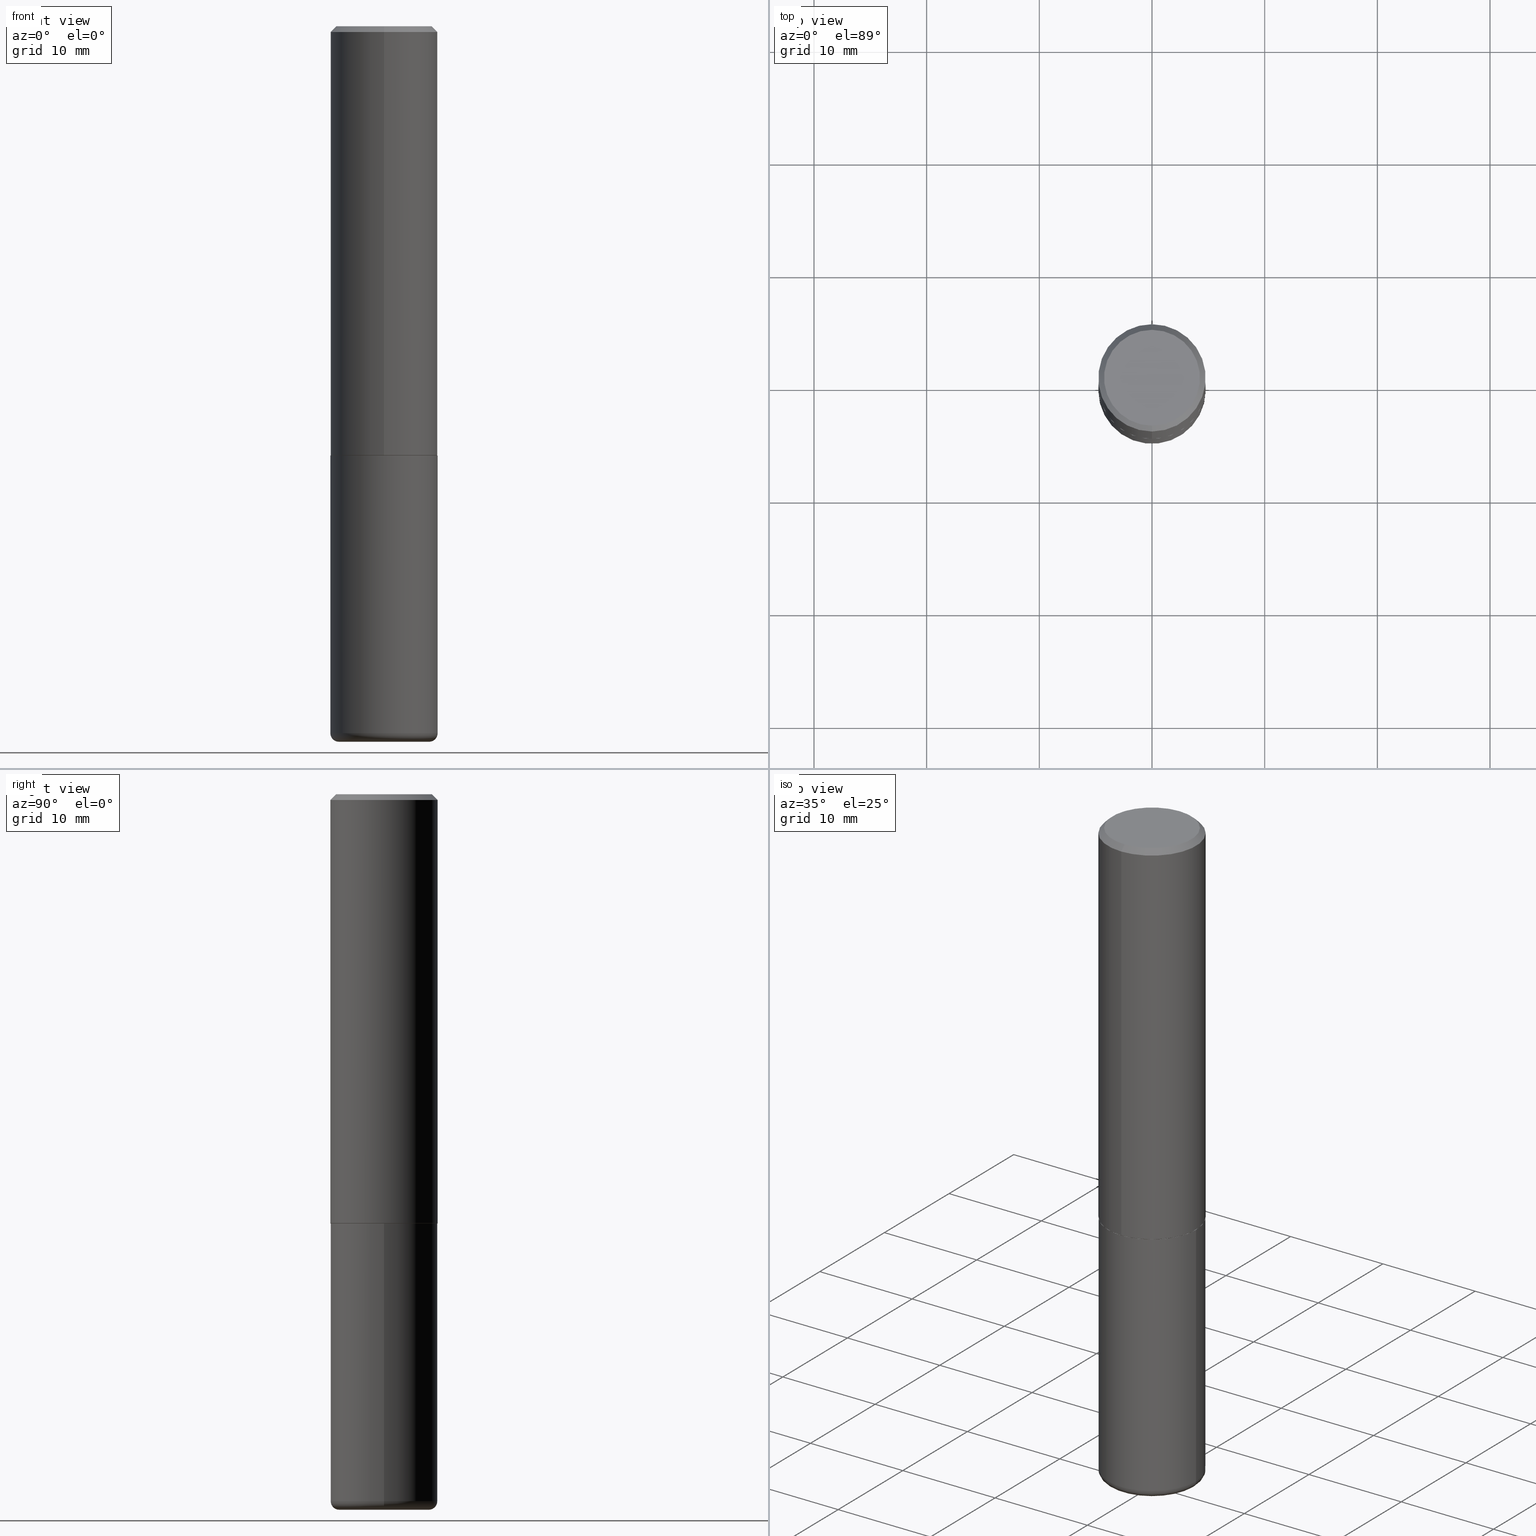
[diagram: canonical four-view strip — front | top / right | iso, engineering-drawing reading convention]
A machine part, canonical four-view strip (front | top / right | iso — engineering-drawing reading convention). The complete STEP part file that produces these views, byte-faithful:
ISO-10303-21;
HEADER;
FILE_DESCRIPTION (( 'STEP AP203' ),
    '1' );
FILE_NAME ('38372.STEP',
    '2024-03-03T01:27:41',
    ( '' ),
    ( '' ),
    'SwSTEP 2.0',
    'SolidWorks 2023',
    '' );
FILE_SCHEMA (( 'CONFIG_CONTROL_DESIGN' ));
ENDSEC;

DATA;
#1 = PERSON_AND_ORGANIZATION ( #109, #358 ) ;
#2 = AXIS2_PLACEMENT_3D ( 'NONE', #100, #399, #105 ) ;
#3 = CC_DESIGN_APPROVAL ( #12, ( #290 ) ) ;
#4 = EDGE_CURVE ( 'NONE', #311, #215, #394, .T. ) ;
#5 = CIRCLE ( 'NONE', #292, 0.03000000000000025910 ) ;
#6 = EDGE_LOOP ( 'NONE', ( #152, #233, #370, #104 ) ) ;
#7 = CARTESIAN_POINT ( 'NONE',  ( 1.309305502066175205E-15, 0.1874999999999999167, -0.02000000000000069431 ) ) ;
#8 = EDGE_CURVE ( 'NONE', #215, #390, #299, .T. ) ;
#9 = EDGE_LOOP ( 'NONE', ( #70, #273 ) ) ;
#10 = FACE_OUTER_BOUND ( 'NONE', #306, .T. ) ;
#11 = ORIENTED_EDGE ( 'NONE', *, *, #294, .F. ) ;
#12 = APPROVAL ( #324, 'UNSPECIFIED' ) ;
#13 = CARTESIAN_POINT ( 'NONE',  ( -1.217738394604445850E-15, -0.1674999999999998435, 7.084849479045783825E-16 ) ) ;
#14 = ORIENTED_EDGE ( 'NONE', *, *, #56, .T. ) ;
#15 = AXIS2_PLACEMENT_3D ( 'NONE', #339, #375, #410 ) ;
#16 = AXIS2_PLACEMENT_3D ( 'NONE', #54, #307, #22 ) ;
#17 = DIRECTION ( 'NONE',  ( -2.445468806185136597E-29, 3.491481338843145583E-15, 1.000000000000000000 ) ) ;
#18 = CARTESIAN_POINT ( 'NONE',  ( 1.309305502066175205E-15, 0.1874999999999999167, -0.02000000000000069431 ) ) ;
#19 = CC_DESIGN_PERSON_AND_ORGANIZATION_ASSIGNMENT ( #25, #154, ( #164 ) ) ;
#20 = PERSON_AND_ORGANIZATION ( #109, #358 ) ;
#21 = EDGE_LOOP ( 'NONE', ( #77, #219, #271, #392 ) ) ;
#22 = DIRECTION ( 'NONE',  ( 1.000000000000000000, -6.982962677686267499E-15, 4.883557194083113462E-29 ) ) ;
#23 = CIRCLE ( 'NONE', #127, 0.1875000000000001943 ) ;
#24 = DIRECTION ( 'NONE',  ( -1.000000000000000000, 6.982962677686265922E-15, -4.876176775795935793E-29 ) ) ;
#25 = PERSON_AND_ORGANIZATION ( #109, #358 ) ;
#26 = ORIENTED_EDGE ( 'NONE', *, *, #165, .F. ) ;
#27 = DIRECTION ( 'NONE',  ( -2.445468806185136597E-29, 3.491481338843145583E-15, 1.000000000000000000 ) ) ;
#28 = APPROVAL_DATE_TIME ( #120, #46 ) ;
#29 = ADVANCED_FACE ( 'NONE', ( #163 ), #305, .F. ) ;
#30 = FACE_OUTER_BOUND ( 'NONE', #6, .T. ) ;
#31 = DIRECTION ( 'NONE',  ( -4.937700262164211199E-15, -0.7071067811864968355, 0.7071067811865981989 ) ) ;
#32 = VECTOR ( 'NONE', #249, 39.37007874015748143 ) ;
#33 = COORDINATED_UNIVERSAL_TIME_OFFSET ( 5, 0, .BEHIND. ) ;
#34 = CC_DESIGN_APPROVAL ( #46, ( #335 ) ) ;
#35 = SECURITY_CLASSIFICATION_LEVEL ( 'unclassified' ) ;
#36 = UNCERTAINTY_MEASURE_WITH_UNIT (LENGTH_MEASURE( 1.000000000000000082E-05 ), #43, 'distance_accuracy_value', 'NONE');
#37 = DATE_AND_TIME ( #40, #415 ) ;
#38 = AXIS2_PLACEMENT_3D ( 'NONE', #102, #150, #196 ) ;
#39 = CIRCLE ( 'NONE', #388, 0.1864999999999999714 ) ;
#40 = CALENDAR_DATE ( 2024, 2, 3 ) ;
#41 = EDGE_CURVE ( 'NONE', #53, #332, #87, .T. ) ;
#42 = PLANE ( 'NONE',  #229 ) ;
#43 =( CONVERSION_BASED_UNIT ( 'INCH', #328 ) LENGTH_UNIT ( ) NAMED_UNIT ( #158 ) );
#44 = AXIS2_PLACEMENT_3D ( 'NONE', #108, #17, #232 ) ;
#45 = CARTESIAN_POINT ( 'NONE',  ( 3.666148437875925943E-29, -5.233171026005651328E-15, -1.499000000000000110 ) ) ;
#46 = APPROVAL ( #349, 'UNSPECIFIED' ) ;
#47 = ORIENTED_EDGE ( 'NONE', *, *, #144, .T. ) ;
#48 = PRODUCT_DEFINITION_SHAPE ( 'NONE', 'NONE',  #335 ) ;
#49 = CARTESIAN_POINT ( 'NONE',  ( 3.668594167320807619E-29, -5.236662134095047748E-15, -1.500000000000000444 ) ) ;
#50 = ORIENTED_EDGE ( 'NONE', *, *, #294, .T. ) ;
#51 = DIRECTION ( 'NONE',  ( -2.445729444880537759E-29, 3.491108089396698105E-15, 1.000000000000000000 ) ) ;
#52 = DIRECTION ( 'NONE',  ( -2.445468806185136877E-29, 3.491481338843145188E-15, 1.000000000000000000 ) ) ;
#53 = VERTEX_POINT ( 'NONE', #403 ) ;
#54 = CARTESIAN_POINT ( 'NONE',  ( 6.040307951277287977E-29, -8.623958906942569995E-15, -2.470000000000000195 ) ) ;
#55 = CARTESIAN_POINT ( 'NONE',  ( 6.040307951277287977E-29, -8.623958906942569995E-15, -2.470000000000000195 ) ) ;
#56 = EDGE_CURVE ( 'NONE', #332, #402, #94, .T. ) ;
#57 = DESIGN_CONTEXT ( 'detailed design', #66, 'design' ) ;
#58 = APPLICATION_CONTEXT ( 'configuration controlled 3d designs of mechanical parts and assemblies' ) ;
#59 = ORIENTED_EDGE ( 'NONE', *, *, #338, .F. ) ;
#60 = CARTESIAN_POINT ( 'NONE',  ( 1.239475875289311907E-15, 0.1674999999999998435, -4.610362620433143958E-16 ) ) ;
#61 = PERSON_AND_ORGANIZATION ( #109, #358 ) ;
#62 = APPROVAL ( #226, 'UNSPECIFIED' ) ;
#63 = CYLINDRICAL_SURFACE ( 'NONE', #371, 0.1875000000000000833 ) ;
#64 = DIRECTION ( 'NONE',  ( -6.982962677686265922E-15, -1.000000000000000000, 3.491108089396698105E-15 ) ) ;
#65 = AXIS2_PLACEMENT_3D ( 'NONE', #174, #393, #170 ) ;
#66 = APPLICATION_CONTEXT ( 'configuration controlled 3d designs of mechanical parts and assemblies' ) ;
#67 = APPROVAL_DATE_TIME ( #37, #12 ) ;
#68 = EDGE_CURVE ( 'NONE', #402, #372, #236, .T. ) ;
#69 = DIRECTION ( 'NONE',  ( 6.982962677686265922E-15, 1.000000000000000000, -3.491108089396698105E-15 ) ) ;
#70 = ORIENTED_EDGE ( 'NONE', *, *, #4, .T. ) ;
#71 = CARTESIAN_POINT ( 'NONE',  ( 4.891458889761085187E-31, -6.982216178793409866E-17, -0.02000000000000004205 ) ) ;
#72 = EDGE_CURVE ( 'NONE', #416, #82, #95, .T. ) ;
#73 =( NAMED_UNIT ( * ) PLANE_ANGLE_UNIT ( ) SI_UNIT ( $, .RADIAN. ) );
#74 = DIRECTION ( 'NONE',  ( 2.445729444880537198E-29, -3.491108089396698105E-15, -1.000000000000000000 ) ) ;
#75 = ORIENTED_EDGE ( 'NONE', *, *, #165, .T. ) ;
#76 = DIRECTION ( 'NONE',  ( -6.982962677686265922E-15, -1.000000000000000000, 2.913971193241877611E-15 ) ) ;
#77 = ORIENTED_EDGE ( 'NONE', *, *, #359, .F. ) ;
#78 = DIRECTION ( 'NONE',  ( -2.445468806185136597E-29, 3.491481338843145583E-15, 1.000000000000000000 ) ) ;
#79 = ORIENTED_EDGE ( 'NONE', *, *, #8, .F. ) ;
#80 = AXIS2_PLACEMENT_3D ( 'NONE', #55, #123, #246 ) ;
#81 = LINE ( 'NONE', #181, #122 ) ;
#82 = VERTEX_POINT ( 'NONE', #331 ) ;
#83 = DIRECTION ( 'NONE',  ( -2.445729444880537759E-29, 3.491108089396698105E-15, 1.000000000000000000 ) ) ;
#84 = ADVANCED_FACE ( 'NONE', ( #260 ), #159, .T. ) ;
#85 = ORIENTED_EDGE ( 'NONE', *, *, #72, .T. ) ;
#86 = CARTESIAN_POINT ( 'NONE',  ( 6.113672015462842613E-29, -8.728703347107866520E-15, -2.500000000000000444 ) ) ;
#87 = CIRCLE ( 'NONE', #378, 0.1875000000000000555 ) ;
#88 = CIRCLE ( 'NONE', #136, 0.03000000000000025910 ) ;
#89 = CARTESIAN_POINT ( 'NONE',  ( 3.668594167320807619E-29, -5.236662134095047748E-15, -1.500000000000000444 ) ) ;
#90 = VERTEX_POINT ( 'NONE', #360 ) ;
#91 = DIRECTION ( 'NONE',  ( 1.000000000000000000, -6.982962677686273021E-15, 0.000000000000000000 ) ) ;
#92 = ADVANCED_FACE ( 'NONE', ( #327 ), #42, .F. ) ;
#93 = DATE_AND_TIME ( #346, #344 ) ;
#94 = LINE ( 'NONE', #264, #227 ) ;
#95 = CIRCLE ( 'NONE', #65, 0.1875000000000001943 ) ;
#96 = PERSON_AND_ORGANIZATION ( #109, #358 ) ;
#97 = DIRECTION ( 'NONE',  ( -2.445468806185136597E-29, 3.491481338843145583E-15, 1.000000000000000000 ) ) ;
#98 = EDGE_CURVE ( 'NONE', #82, #171, #336, .T. ) ;
#99 = AXIS2_PLACEMENT_3D ( 'NONE', #401, #348, #153 ) ;
#100 = CARTESIAN_POINT ( 'NONE',  ( 6.040307951277287977E-29, -8.623958906942569995E-15, -2.470000000000000195 ) ) ;
#101 = ADVANCED_FACE ( 'NONE', ( #263 ), #397, .T. ) ;
#102 = CARTESIAN_POINT ( 'NONE',  ( 3.668203209277704895E-29, -5.237222008264718177E-15, -1.500000000000000222 ) ) ;
#103 = DIRECTION ( 'NONE',  ( 1.000000000000000000, -6.982962677686266711E-15, 0.000000000000000000 ) ) ;
#104 = ORIENTED_EDGE ( 'NONE', *, *, #400, .F. ) ;
#105 = DIRECTION ( 'NONE',  ( 1.000000000000000000, -6.982962677686267499E-15, 4.883557194083113462E-29 ) ) ;
#106 = LOCAL_TIME ( 20, 27, 41.00000000000000000, #161 ) ;
#107 = ORIENTED_EDGE ( 'NONE', *, *, #354, .F. ) ;
#108 = CARTESIAN_POINT ( 'NONE',  ( 0.000000000000000000, 0.000000000000000000, 0.000000000000000000 ) ) ;
#109 = PERSON ( 'UNSPECIFIED', 'UNSPECIFIED', 'UNSPECIFIED', ('UNSPECIFIED'), ('UNSPECIFIED'), ('UNSPECIFIED') ) ;
#110 = FACE_OUTER_BOUND ( 'NONE', #184, .T. ) ;
#111 = ADVANCED_FACE ( 'NONE', ( #138 ), #310, .T. ) ;
#112 = DIRECTION ( 'NONE',  ( -6.982962677686266711E-15, -1.000000000000000000, 3.491108089396698105E-15 ) ) ;
#113 = CONICAL_SURFACE ( 'NONE', #265, 0.1864999999999999714, 0.7853981633973801113 ) ;
#114 = CC_DESIGN_APPROVAL ( #62, ( #193 ) ) ;
#115 = LINE ( 'NONE', #242, #32 ) ;
#116 = VERTEX_POINT ( 'NONE', #195 ) ;
#117 = CARTESIAN_POINT ( 'NONE',  ( 3.668594167320807619E-29, -5.236662134095047748E-15, -1.500000000000000444 ) ) ;
#118 = EDGE_LOOP ( 'NONE', ( #340, #180, #121, #107 ) ) ;
#119 = FACE_OUTER_BOUND ( 'NONE', #166, .T. ) ;
#120 = DATE_AND_TIME ( #182, #199 ) ;
#121 = ORIENTED_EDGE ( 'NONE', *, *, #253, .T. ) ;
#122 = VECTOR ( 'NONE', #312, 39.37007874015748143 ) ;
#123 = DIRECTION ( 'NONE',  ( -2.445468806185136597E-29, 3.491481338843145583E-15, 1.000000000000000000 ) ) ;
#124 = DIRECTION ( 'NONE',  ( -6.982962677686266711E-15, -1.000000000000000000, 3.491108089396698499E-15 ) ) ;
#125 =( LENGTH_UNIT ( ) NAMED_UNIT ( * ) SI_UNIT ( $, .METRE. ) );
#126 = PERSON_AND_ORGANIZATION_ROLE ( 'creator' ) ;
#127 = AXIS2_PLACEMENT_3D ( 'NONE', #45, #237, #76 ) ;
#128 = CLOSED_SHELL ( 'NONE', ( #230, #222, #84, #111, #350, #210, #282, #92 ) ) ;
#129 = DATE_AND_TIME ( #387, #106 ) ;
#130 = AXIS2_PLACEMENT_3D ( 'NONE', #231, #267, #258 ) ;
#131 = CIRCLE ( 'NONE', #320, 0.1674999999999998435 ) ;
#132 = DIRECTION ( 'NONE',  ( -2.445729444880537759E-29, 3.491108089396698105E-15, 1.000000000000000000 ) ) ;
#133 = DIRECTION ( 'NONE',  ( 4.937700262164543309E-15, 0.7071067811865444641, -0.7071067811865506814 ) ) ;
#134 = ADVANCED_BREP_SHAPE_REPRESENTATION ( '38372', ( #205, #209, #285 ), #322 ) ;
#135 = CYLINDRICAL_SURFACE ( 'NONE', #130, 0.1875000000000000833 ) ;
#136 = AXIS2_PLACEMENT_3D ( 'NONE', #220, #142, #91 ) ;
#137 = APPROVAL_PERSON_ORGANIZATION ( #61, #46, #141 ) ;
#138 = FACE_OUTER_BOUND ( 'NONE', #268, .T. ) ;
#139 = EDGE_CURVE ( 'NONE', #311, #171, #368, .T. ) ;
#140 = DIRECTION ( 'NONE',  ( -1.000000000000000000, 7.105427357600994759E-15, 0.000000000000000000 ) ) ;
#141 = APPROVAL_ROLE ( '' ) ;
#142 = DIRECTION ( 'NONE',  ( -6.982962677686266711E-15, -1.000000000000000000, 3.491481338843145583E-15 ) ) ;
#143 = CIRCLE ( 'NONE', #218, 0.1875000000000000278 ) ;
#144 = EDGE_CURVE ( 'NONE', #82, #416, #23, .T. ) ;
#145 = ORIENTED_EDGE ( 'NONE', *, *, #178, .F. ) ;
#146 = CC_DESIGN_SECURITY_CLASSIFICATION ( #193, ( #290 ) ) ;
#147 = LINE ( 'NONE', #408, #243 ) ;
#148 = MECHANICAL_CONTEXT ( 'NONE', #58, 'mechanical' ) ;
#149 = EDGE_LOOP ( 'NONE', ( #280, #47, #407, #11 ) ) ;
#150 = DIRECTION ( 'NONE',  ( 2.438088387897960049E-29, -3.491481338843145188E-15, -1.000000000000000000 ) ) ;
#151 = DIRECTION ( 'NONE',  ( -2.445729444880537759E-29, 3.491108089396698105E-15, 1.000000000000000000 ) ) ;
#152 = ORIENTED_EDGE ( 'NONE', *, *, #262, .T. ) ;
#153 = DIRECTION ( 'NONE',  ( -6.982962677686265922E-15, -1.000000000000000000, 2.929595703661408850E-15 ) ) ;
#154 = PERSON_AND_ORGANIZATION_ROLE ( 'design_owner' ) ;
#155 = AXIS2_PLACEMENT_3D ( 'NONE', #71, #132, #334 ) ;
#156 = CC_DESIGN_PERSON_AND_ORGANIZATION_ASSIGNMENT ( #1, #356, ( #193 ) ) ;
#157 = DATE_AND_TIME ( #352, #160 ) ;
#158 = DIMENSIONAL_EXPONENTS ( 1.000000000000000000, 0.000000000000000000, 0.000000000000000000, 0.000000000000000000, 0.000000000000000000, 0.000000000000000000, 0.000000000000000000 ) ;
#159 = CONICAL_SURFACE ( 'NONE', #198, 0.1874999999999999722, 0.7853981633974473908 ) ;
#160 = LOCAL_TIME ( 20, 27, 41.00000000000000000, #289 ) ;
#161 = COORDINATED_UNIVERSAL_TIME_OFFSET ( 5, 0, .BEHIND. ) ;
#162 = SHAPE_DEFINITION_REPRESENTATION ( #48, #134 ) ;
#163 = FACE_OUTER_BOUND ( 'NONE', #308, .T. ) ;
#164 = PRODUCT ( '38372', '38372', '', ( #148 ) ) ;
#165 = EDGE_CURVE ( 'NONE', #372, #402, #143, .T. ) ;
#166 = EDGE_LOOP ( 'NONE', ( #295, #411 ) ) ;
#167 = VECTOR ( 'NONE', #384, 39.37007874015748143 ) ;
#168 = CARTESIAN_POINT ( 'NONE',  ( 4.891458889761085187E-31, -6.982216178793409866E-17, -0.02000000000000004205 ) ) ;
#169 = CIRCLE ( 'NONE', #208, 0.1575000000000000289 ) ;
#170 = DIRECTION ( 'NONE',  ( -6.982962677686265922E-15, -1.000000000000000000, 2.913971193241877611E-15 ) ) ;
#171 = VERTEX_POINT ( 'NONE', #18 ) ;
#172 = DIRECTION ( 'NONE',  ( -6.982962677686265922E-15, -1.000000000000000000, 2.929595703661408850E-15 ) ) ;
#173 = CC_DESIGN_PERSON_AND_ORGANIZATION_ASSIGNMENT ( #20, #270, ( #335 ) ) ;
#174 = CARTESIAN_POINT ( 'NONE',  ( 3.666148437875925943E-29, -5.233171026005651328E-15, -1.499000000000000110 ) ) ;
#175 = CARTESIAN_POINT ( 'NONE',  ( 3.668203209277704895E-29, -5.237222008264718177E-15, -1.500000000000000222 ) ) ;
#176 = ORIENTED_EDGE ( 'NONE', *, *, #400, .T. ) ;
#177 = DIRECTION ( 'NONE',  ( -6.982962677686266711E-15, -1.000000000000000000, 3.483106191921935949E-15 ) ) ;
#178 = EDGE_CURVE ( 'NONE', #390, #171, #363, .T. ) ;
#179 = CARTESIAN_POINT ( 'NONE',  ( 5.767437074231431519E-31, -1.740123666032775133E-14, -2.500000000000000000 ) ) ;
#180 = ORIENTED_EDGE ( 'NONE', *, *, #413, .T. ) ;
#181 = CARTESIAN_POINT ( 'NONE',  ( 0.1875000000000000555, -1.309305502066175205E-15, 9.142831454617382414E-30 ) ) ;
#182 = CALENDAR_DATE ( 2024, 2, 3 ) ;
#183 = CARTESIAN_POINT ( 'NONE',  ( 0.000000000000000000, 0.000000000000000000, 0.000000000000000000 ) ) ;
#184 = EDGE_LOOP ( 'NONE', ( #374, #291, #223, #326 ) ) ;
#185 = CC_DESIGN_DATE_AND_TIME_ASSIGNMENT ( #93, #187, ( #335 ) ) ;
#186 = DIRECTION ( 'NONE',  ( -2.445729444880537759E-29, 3.491108089396698105E-15, 1.000000000000000000 ) ) ;
#187 = DATE_TIME_ROLE ( 'creation_date' ) ;
#188 = AXIS2_PLACEMENT_3D ( 'NONE', #179, #412, #24 ) ;
#189 = CARTESIAN_POINT ( 'NONE',  ( -1.309305502066139509E-15, -0.1875000000000054123, -1.498999999999999444 ) ) ;
#190 = PERSON_AND_ORGANIZATION ( #109, #358 ) ;
#191 = ADVANCED_FACE ( 'NONE', ( #10 ), #321, .T. ) ;
#192 = CIRCLE ( 'NONE', #15, 0.1864999999999999714 ) ;
#193 = SECURITY_CLASSIFICATION ( '', '', #35 ) ;
#194 = APPROVAL_DATE_TIME ( #157, #62 ) ;
#195 = CARTESIAN_POINT ( 'NONE',  ( -0.1575000000000000289, -7.450644907839043165E-15, -2.500000000000000444 ) ) ;
#196 = DIRECTION ( 'NONE',  ( -1.000000000000000000, 6.982962677686265922E-15, -4.876176775795935793E-29 ) ) ;
#197 = ORIENTED_EDGE ( 'NONE', *, *, #41, .F. ) ;
#198 = AXIS2_PLACEMENT_3D ( 'NONE', #168, #365, #296 ) ;
#199 = LOCAL_TIME ( 20, 27, 41.00000000000000000, #414 ) ;
#200 =( NAMED_UNIT ( * ) SI_UNIT ( $, .STERADIAN. ) SOLID_ANGLE_UNIT ( ) );
#201 = DIRECTION ( 'NONE',  ( 6.982962677686266711E-15, 1.000000000000000000, -3.483106191921935949E-15 ) ) ;
#202 = ORIENTED_EDGE ( 'NONE', *, *, #413, .F. ) ;
#203 = DIRECTION ( 'NONE',  ( -2.445468806185136597E-29, 3.491481338843145583E-15, 1.000000000000000000 ) ) ;
#204 = ORIENTED_EDGE ( 'NONE', *, *, #4, .F. ) ;
#205 = MANIFOLD_SOLID_BREP ( 'Body-Move/Copy2[1]', #235 ) ;
#206 = DIRECTION ( 'NONE',  ( -2.445468806185136597E-29, 3.491481338843145583E-15, 1.000000000000000000 ) ) ;
#207 = CIRCLE ( 'NONE', #250, 0.1874999999999999722 ) ;
#208 = AXIS2_PLACEMENT_3D ( 'NONE', #351, #254, #286 ) ;
#209 = MANIFOLD_SOLID_BREP ( 'Body-Move/Copy2[2]', #128 ) ;
#210 = ADVANCED_FACE ( 'NONE', ( #333 ), #113, .T. ) ;
#211 = LINE ( 'NONE', #417, #405 ) ;
#212 = ORIENTED_EDGE ( 'NONE', *, *, #240, .T. ) ;
#213 = FACE_OUTER_BOUND ( 'NONE', #241, .T. ) ;
#214 = DIRECTION ( 'NONE',  ( 1.000000000000000000, 0.000000000000000000, 0.000000000000000000 ) ) ;
#215 = VERTEX_POINT ( 'NONE', #13 ) ;
#216 = DIRECTION ( 'NONE',  ( -2.445729444880537198E-29, 3.491108089396698105E-15, 1.000000000000000000 ) ) ;
#217 = AXIS2_PLACEMENT_3D ( 'NONE', #278, #409, #124 ) ;
#218 = AXIS2_PLACEMENT_3D ( 'NONE', #304, #203, #298 ) ;
#219 = ORIENTED_EDGE ( 'NONE', *, *, #8, .T. ) ;
#220 = CARTESIAN_POINT ( 'NONE',  ( 0.1575000000000000289, -9.723775528678158264E-15, -2.470000000000000195 ) ) ;
#221 = COORDINATED_UNIVERSAL_TIME_OFFSET ( 5, 0, .BEHIND. ) ;
#222 = ADVANCED_FACE ( 'NONE', ( #302 ), #135, .T. ) ;
#223 = ORIENTED_EDGE ( 'NONE', *, *, #338, .T. ) ;
#224 = DIRECTION ( 'NONE',  ( 7.105427357601001859E-15, 1.000000000000000000, -3.491481338843145583E-15 ) ) ;
#225 = CARTESIAN_POINT ( 'NONE',  ( -0.1875000000000000278, -5.598322828053456632E-15, -1.500000000000000222 ) ) ;
#226 = APPROVAL_STATUS ( 'not_yet_approved' ) ;
#227 = VECTOR ( 'NONE', #52, 39.37007874015748143 ) ;
#228 = ADVANCED_FACE ( 'NONE', ( #110 ), #239, .T. ) ;
#229 = AXIS2_PLACEMENT_3D ( 'NONE', #266, #74, #69 ) ;
#230 = ADVANCED_FACE ( 'NONE', ( #30 ), #343, .T. ) ;
#231 = CARTESIAN_POINT ( 'NONE',  ( 0.000000000000000000, 0.000000000000000000, 0.000000000000000000 ) ) ;
#232 = DIRECTION ( 'NONE',  ( 1.000000000000000000, -6.982962677686265922E-15, 4.876176775795935793E-29 ) ) ;
#233 = ORIENTED_EDGE ( 'NONE', *, *, #274, .T. ) ;
#234 = VERTEX_POINT ( 'NONE', #247 ) ;
#235 = CLOSED_SHELL ( 'NONE', ( #101, #191, #29, #228, #398, #367 ) ) ;
#236 = CIRCLE ( 'NONE', #385, 0.1875000000000000278 ) ;
#237 = DIRECTION ( 'NONE',  ( -2.445729444880537759E-29, 3.491108089396698105E-15, 1.000000000000000000 ) ) ;
#238 = DIRECTION ( 'NONE',  ( 2.445729444880537759E-29, -3.491108089396698105E-15, -1.000000000000000000 ) ) ;
#239 = CYLINDRICAL_SURFACE ( 'NONE', #396, 0.1875000000000000555 ) ;
#240 = EDGE_CURVE ( 'NONE', #90, #234, #39, .T. ) ;
#241 = EDGE_LOOP ( 'NONE', ( #315, #202 ) ) ;
#242 = CARTESIAN_POINT ( 'NONE',  ( -1.309305502066175600E-15, -0.1875000000000000833, 6.545827667618811658E-16 ) ) ;
#243 = VECTOR ( 'NONE', #337, 39.37007874015748143 ) ;
#244 = CARTESIAN_POINT ( 'NONE',  ( -1.286343374582161379E-15, -0.1875000000000000555, -0.01999999999999938979 ) ) ;
#245 = EDGE_LOOP ( 'NONE', ( #85, #303, #145, #259 ) ) ;
#246 = DIRECTION ( 'NONE',  ( 1.000000000000000000, -6.982962677686265922E-15, 0.000000000000000000 ) ) ;
#247 = CARTESIAN_POINT ( 'NONE',  ( -1.302322539388451720E-15, -0.1865000000000051894, -1.499999999999999778 ) ) ;
#248 = DIRECTION ( 'NONE',  ( 0.000000000000000000, 0.000000000000000000, 1.000000000000000000 ) ) ;
#249 = DIRECTION ( 'NONE',  ( -2.445729444880537479E-29, 3.491108089396698105E-15, 1.000000000000000000 ) ) ;
#250 = AXIS2_PLACEMENT_3D ( 'NONE', #342, #83, #177 ) ;
#251 = ORIENTED_EDGE ( 'NONE', *, *, #253, .F. ) ;
#252 = CARTESIAN_POINT ( 'NONE',  ( 0.1875000000000000278, -6.546527510330893974E-15, -1.500000000000000222 ) ) ;
#253 = EDGE_CURVE ( 'NONE', #316, #53, #88, .T. ) ;
#254 = DIRECTION ( 'NONE',  ( -2.445468806185136597E-29, 3.491481338843145583E-15, 1.000000000000000000 ) ) ;
#255 = EDGE_CURVE ( 'NONE', #316, #116, #379, .T. ) ;
#256 = VECTOR ( 'NONE', #391, 39.37007874015748143 ) ;
#257 = CC_DESIGN_PERSON_AND_ORGANIZATION_ASSIGNMENT ( #323, #126, ( #290 ) ) ;
#258 = DIRECTION ( 'NONE',  ( -6.982962677686266711E-15, -1.000000000000000000, 3.491108089396698105E-15 ) ) ;
#259 = ORIENTED_EDGE ( 'NONE', *, *, #318, .F. ) ;
#260 = FACE_OUTER_BOUND ( 'NONE', #21, .T. ) ;
#261 = EDGE_LOOP ( 'NONE', ( #376, #14, #26, #59 ) ) ;
#262 = EDGE_CURVE ( 'NONE', #234, #90, #192, .T. ) ;
#263 = FACE_OUTER_BOUND ( 'NONE', #261, .T. ) ;
#264 = CARTESIAN_POINT ( 'NONE',  ( -0.1875000000000000555, 1.332267629550188243E-15, -9.223003294227950793E-30 ) ) ;
#265 = AXIS2_PLACEMENT_3D ( 'NONE', #49, #51, #172 ) ;
#266 = CARTESIAN_POINT ( 'NONE',  ( 1.169646248512448609E-15, 0.1674999999999998435, -5.228984335086304171E-16 ) ) ;
#267 = DIRECTION ( 'NONE',  ( -2.445729444880537759E-29, 3.491108089396698105E-15, 1.000000000000000000 ) ) ;
#268 = EDGE_LOOP ( 'NONE', ( #79, #204, #362, #50 ) ) ;
#269 = CARTESIAN_POINT ( 'NONE',  ( -1.286343374582161379E-15, -0.1875000000000000555, -0.01999999999999938979 ) ) ;
#270 = PERSON_AND_ORGANIZATION_ROLE ( 'creator' ) ;
#271 = ORIENTED_EDGE ( 'NONE', *, *, #178, .T. ) ;
#272 = CARTESIAN_POINT ( 'NONE',  ( -3.025962685539437692E-45, 4.319350544604203888E-31, 1.237243429306319441E-16 ) ) ;
#273 = ORIENTED_EDGE ( 'NONE', *, *, #359, .T. ) ;
#274 = EDGE_CURVE ( 'NONE', #90, #82, #147, .T. ) ;
#275 = FACE_OUTER_BOUND ( 'NONE', #118, .T. ) ;
#276 = APPLICATION_PROTOCOL_DEFINITION ( 'international standard', 'config_control_design', 1994, #66 ) ;
#277 = CARTESIAN_POINT ( 'NONE',  ( 6.040307951277287977E-29, -8.623958906942569995E-15, -2.470000000000000195 ) ) ;
#278 = CARTESIAN_POINT ( 'NONE',  ( -3.025962685539437692E-45, 4.319350544604203888E-31, 1.237243429306319441E-16 ) ) ;
#279 = DIRECTION ( 'NONE',  ( -6.982962677686265922E-15, -1.000000000000000000, 2.929595703661408850E-15 ) ) ;
#280 = ORIENTED_EDGE ( 'NONE', *, *, #98, .F. ) ;
#281 = PLANE ( 'NONE',  #188 ) ;
#282 = ADVANCED_FACE ( 'NONE', ( #119 ), #309, .F. ) ;
#283 = AXIS2_PLACEMENT_3D ( 'NONE', #293, #238, #201 ) ;
#284 = ORIENTED_EDGE ( 'NONE', *, *, #255, .T. ) ;
#285 = AXIS2_PLACEMENT_3D ( 'NONE', #313, #248, #214 ) ;
#286 = DIRECTION ( 'NONE',  ( 1.000000000000000000, -6.982962677686267499E-15, 0.000000000000000000 ) ) ;
#287 = DATE_TIME_ROLE ( 'classification_date' ) ;
#288 = CC_DESIGN_DATE_AND_TIME_ASSIGNMENT ( #129, #287, ( #193 ) ) ;
#289 = COORDINATED_UNIVERSAL_TIME_OFFSET ( 5, 0, .BEHIND. ) ;
#290 = PRODUCT_DEFINITION_FORMATION_WITH_SPECIFIED_SOURCE ( 'ANY', '', #164, .NOT_KNOWN. ) ;
#291 = ORIENTED_EDGE ( 'NONE', *, *, #354, .T. ) ;
#292 = AXIS2_PLACEMENT_3D ( 'NONE', #381, #224, #140 ) ;
#293 = CARTESIAN_POINT ( 'NONE',  ( 4.891458889761085187E-31, -6.982216178793409866E-17, -0.02000000000000004205 ) ) ;
#294 = EDGE_CURVE ( 'NONE', #171, #390, #207, .T. ) ;
#295 = ORIENTED_EDGE ( 'NONE', *, *, #262, .F. ) ;
#296 = DIRECTION ( 'NONE',  ( 6.982962677686266711E-15, 1.000000000000000000, -3.483106191921935949E-15 ) ) ;
#297 = ORIENTED_EDGE ( 'NONE', *, *, #386, .T. ) ;
#298 = DIRECTION ( 'NONE',  ( 1.000000000000000000, -6.982962677686266711E-15, 0.000000000000000000 ) ) ;
#299 = LINE ( 'NONE', #244, #167 ) ;
#300 = ORIENTED_EDGE ( 'NONE', *, *, #68, .T. ) ;
#301 = AXIS2_PLACEMENT_3D ( 'NONE', #89, #216, #64 ) ;
#302 = FACE_OUTER_BOUND ( 'NONE', #245, .T. ) ;
#303 = ORIENTED_EDGE ( 'NONE', *, *, #98, .T. ) ;
#304 = CARTESIAN_POINT ( 'NONE',  ( 3.668203209277704895E-29, -5.237222008264718177E-15, -1.500000000000000222 ) ) ;
#305 = PLANE ( 'NONE',  #38 ) ;
#306 = EDGE_LOOP ( 'NONE', ( #284, #297, #197, #251 ) ) ;
#307 = DIRECTION ( 'NONE',  ( -2.445468806185136597E-29, 3.491481338843145583E-15, 1.000000000000000000 ) ) ;
#308 = EDGE_LOOP ( 'NONE', ( #75, #300 ) ) ;
#309 = PLANE ( 'NONE',  #301 ) ;
#310 = CONICAL_SURFACE ( 'NONE', #283, 0.1874999999999999722, 0.7853981633974473908 ) ;
#311 = VERTEX_POINT ( 'NONE', #60 ) ;
#312 = DIRECTION ( 'NONE',  ( -2.445468806185136877E-29, 3.491481338843145188E-15, 1.000000000000000000 ) ) ;
#313 = CARTESIAN_POINT ( 'NONE',  ( 0.000000000000000000, 0.000000000000000000, 0.000000000000000000 ) ) ;
#314 = CARTESIAN_POINT ( 'NONE',  ( -0.1875000000000001943, -7.291691277392382147E-15, -2.470000000000000195 ) ) ;
#315 = ORIENTED_EDGE ( 'NONE', *, *, #255, .F. ) ;
#316 = VERTEX_POINT ( 'NONE', #406 ) ;
#317 = DIRECTION ( 'NONE',  ( -2.445729444880537759E-29, 3.491108089396698105E-15, 1.000000000000000000 ) ) ;
#318 = EDGE_CURVE ( 'NONE', #416, #390, #115, .T. ) ;
#319 = APPROVAL_ROLE ( '' ) ;
#320 = AXIS2_PLACEMENT_3D ( 'NONE', #272, #317, #373 ) ;
#321 = TOROIDAL_SURFACE ( 'NONE', #2, 0.1575000000000000289, 0.03000000000000025910 ) ;
#322 =( GEOMETRIC_REPRESENTATION_CONTEXT ( 3 ) GLOBAL_UNCERTAINTY_ASSIGNED_CONTEXT ( ( #36 ) ) GLOBAL_UNIT_ASSIGNED_CONTEXT ( ( #43, #73, #200 ) ) REPRESENTATION_CONTEXT ( 'NONE', 'WORKASPACE' ) );
#323 = PERSON_AND_ORGANIZATION ( #109, #358 ) ;
#324 = APPROVAL_STATUS ( 'not_yet_approved' ) ;
#325 = APPROVAL_ROLE ( '' ) ;
#326 = ORIENTED_EDGE ( 'NONE', *, *, #68, .F. ) ;
#327 = FACE_OUTER_BOUND ( 'NONE', #9, .T. ) ;
#328 = LENGTH_MEASURE_WITH_UNIT ( LENGTH_MEASURE( 0.02539999999999999897 ), #125 );
#329 = ORIENTED_EDGE ( 'NONE', *, *, #144, .F. ) ;
#330 = VECTOR ( 'NONE', #133, 39.37007874015748143 ) ;
#331 = CARTESIAN_POINT ( 'NONE',  ( 1.332267629550206781E-15, 0.1874999999999949485, -1.499000000000000554 ) ) ;
#332 = VERTEX_POINT ( 'NONE', #314 ) ;
#333 = FACE_OUTER_BOUND ( 'NONE', #395, .T. ) ;
#334 = DIRECTION ( 'NONE',  ( -6.982962677686266711E-15, -1.000000000000000000, 3.483106191921935949E-15 ) ) ;
#335 = PRODUCT_DEFINITION ( 'UNKNOWN', '', #290, #57 ) ;
#336 = LINE ( 'NONE', #361, #256 ) ;
#337 = DIRECTION ( 'NONE',  ( 5.024295867787719235E-15, 0.7071067811865017205, 0.7071067811865933139 ) ) ;
#338 = EDGE_CURVE ( 'NONE', #53, #372, #81, .T. ) ;
#339 = CARTESIAN_POINT ( 'NONE',  ( 3.668594167320807619E-29, -5.236662134095047748E-15, -1.500000000000000444 ) ) ;
#340 = ORIENTED_EDGE ( 'NONE', *, *, #386, .F. ) ;
#341 = APPLICATION_PROTOCOL_DEFINITION ( 'international standard', 'config_control_design', 1994, #58 ) ;
#342 = CARTESIAN_POINT ( 'NONE',  ( 4.891458889761085187E-31, -6.982216178793409866E-17, -0.02000000000000004205 ) ) ;
#343 = CONICAL_SURFACE ( 'NONE', #99, 0.1864999999999999714, 0.7853981633973801113 ) ;
#344 = LOCAL_TIME ( 20, 27, 41.00000000000000000, #221 ) ;
#345 = DIRECTION ( 'NONE',  ( 1.000000000000000000, -6.982962677686267499E-15, 0.000000000000000000 ) ) ;
#346 = CALENDAR_DATE ( 2024, 2, 3 ) ;
#347 = ORIENTED_EDGE ( 'NONE', *, *, #274, .F. ) ;
#348 = DIRECTION ( 'NONE',  ( -2.445729444880537759E-29, 3.491108089396698105E-15, 1.000000000000000000 ) ) ;
#349 = APPROVAL_STATUS ( 'not_yet_approved' ) ;
#350 = ADVANCED_FACE ( 'NONE', ( #377 ), #63, .T. ) ;
#351 = CARTESIAN_POINT ( 'NONE',  ( 6.113672015462842613E-29, -8.728703347107866520E-15, -2.500000000000000444 ) ) ;
#352 = CALENDAR_DATE ( 2024, 2, 3 ) ;
#353 = AXIS2_PLACEMENT_3D ( 'NONE', #86, #27, #345 ) ;
#354 = EDGE_CURVE ( 'NONE', #332, #53, #357, .T. ) ;
#355 = PRODUCT_RELATED_PRODUCT_CATEGORY ( 'detail', '', ( #164 ) ) ;
#356 = PERSON_AND_ORGANIZATION_ROLE ( 'classification_officer' ) ;
#357 = CIRCLE ( 'NONE', #80, 0.1875000000000000555 ) ;
#358 = ORGANIZATION ( 'UNSPECIFIED', 'UNSPECIFIED', '' ) ;
#359 = EDGE_CURVE ( 'NONE', #215, #311, #131, .T. ) ;
#360 = CARTESIAN_POINT ( 'NONE',  ( 1.328714915871423829E-15, 0.1864999999999947533, -1.500000000000000888 ) ) ;
#361 = CARTESIAN_POINT ( 'NONE',  ( 1.332267629550188243E-15, 0.1875000000000000833, -6.545827667618811658E-16 ) ) ;
#362 = ORIENTED_EDGE ( 'NONE', *, *, #139, .T. ) ;
#363 = CIRCLE ( 'NONE', #155, 0.1874999999999999722 ) ;
#364 = APPROVAL_PERSON_ORGANIZATION ( #418, #62, #319 ) ;
#365 = DIRECTION ( 'NONE',  ( 2.445729444880537759E-29, -3.491108089396698105E-15, -1.000000000000000000 ) ) ;
#366 = DIRECTION ( 'NONE',  ( 1.000000000000000000, -6.982962677686265922E-15, 0.000000000000000000 ) ) ;
#367 = ADVANCED_FACE ( 'NONE', ( #213 ), #281, .T. ) ;
#368 = LINE ( 'NONE', #7, #330 ) ;
#369 = CARTESIAN_POINT ( 'NONE',  ( 0.000000000000000000, 0.000000000000000000, 0.000000000000000000 ) ) ;
#370 = ORIENTED_EDGE ( 'NONE', *, *, #72, .F. ) ;
#371 = AXIS2_PLACEMENT_3D ( 'NONE', #183, #186, #112 ) ;
#372 = VERTEX_POINT ( 'NONE', #252 ) ;
#373 = DIRECTION ( 'NONE',  ( -6.982962677686266711E-15, -1.000000000000000000, 3.491108089396698499E-15 ) ) ;
#374 = ORIENTED_EDGE ( 'NONE', *, *, #56, .F. ) ;
#375 = DIRECTION ( 'NONE',  ( -2.445729444880537759E-29, 3.491108089396698105E-15, 1.000000000000000000 ) ) ;
#376 = ORIENTED_EDGE ( 'NONE', *, *, #41, .T. ) ;
#377 = FACE_OUTER_BOUND ( 'NONE', #149, .T. ) ;
#378 = AXIS2_PLACEMENT_3D ( 'NONE', #277, #97, #366 ) ;
#379 = CIRCLE ( 'NONE', #353, 0.1575000000000000289 ) ;
#380 = APPROVAL_PERSON_ORGANIZATION ( #190, #12, #325 ) ;
#381 = CARTESIAN_POINT ( 'NONE',  ( -0.1575000000000000289, -7.504854098120412392E-15, -2.470000000000000195 ) ) ;
#382 = CC_DESIGN_PERSON_AND_ORGANIZATION_ASSIGNMENT ( #96, #383, ( #290 ) ) ;
#383 = PERSON_AND_ORGANIZATION_ROLE ( 'design_supplier' ) ;
#384 = DIRECTION ( 'NONE',  ( -4.851104656540959542E-15, -0.7071067811865493491, -0.7071067811865457964 ) ) ;
#385 = AXIS2_PLACEMENT_3D ( 'NONE', #175, #206, #103 ) ;
#386 = EDGE_CURVE ( 'NONE', #116, #332, #5, .T. ) ;
#387 = CALENDAR_DATE ( 2024, 2, 3 ) ;
#388 = AXIS2_PLACEMENT_3D ( 'NONE', #117, #151, #279 ) ;
#389 = DIRECTION ( 'NONE',  ( 1.000000000000000000, -6.982962677686265922E-15, 4.876176775795935793E-29 ) ) ;
#390 = VERTEX_POINT ( 'NONE', #269 ) ;
#391 = DIRECTION ( 'NONE',  ( -2.445729444880537479E-29, 3.491108089396698105E-15, 1.000000000000000000 ) ) ;
#392 = ORIENTED_EDGE ( 'NONE', *, *, #139, .F. ) ;
#393 = DIRECTION ( 'NONE',  ( -2.445729444880537759E-29, 3.491108089396698105E-15, 1.000000000000000000 ) ) ;
#394 = CIRCLE ( 'NONE', #217, 0.1674999999999998435 ) ;
#395 = EDGE_LOOP ( 'NONE', ( #347, #212, #176, #329 ) ) ;
#396 = AXIS2_PLACEMENT_3D ( 'NONE', #369, #78, #389 ) ;
#397 = CYLINDRICAL_SURFACE ( 'NONE', #44, 0.1875000000000000555 ) ;
#398 = ADVANCED_FACE ( 'NONE', ( #275 ), #404, .T. ) ;
#399 = DIRECTION ( 'NONE',  ( -2.445468806185136597E-29, 3.491481338843145583E-15, 1.000000000000000000 ) ) ;
#400 = EDGE_CURVE ( 'NONE', #234, #416, #211, .T. ) ;
#401 = CARTESIAN_POINT ( 'NONE',  ( 3.668594167320807619E-29, -5.236662134095047748E-15, -1.500000000000000444 ) ) ;
#402 = VERTEX_POINT ( 'NONE', #225 ) ;
#403 = CARTESIAN_POINT ( 'NONE',  ( 0.1875000000000001943, -9.933264409008746581E-15, -2.470000000000000195 ) ) ;
#404 = TOROIDAL_SURFACE ( 'NONE', #16, 0.1575000000000000289, 0.03000000000000025910 ) ;
#405 = VECTOR ( 'NONE', #31, 39.37007874015748143 ) ;
#406 = CARTESIAN_POINT ( 'NONE',  ( 0.1575000000000000289, -9.828519968843453212E-15, -2.500000000000000444 ) ) ;
#407 = ORIENTED_EDGE ( 'NONE', *, *, #318, .T. ) ;
#408 = CARTESIAN_POINT ( 'NONE',  ( 1.325162202192623128E-15, 0.1864999999999947533, -1.500000000000000888 ) ) ;
#409 = DIRECTION ( 'NONE',  ( -2.445729444880537759E-29, 3.491108089396698105E-15, 1.000000000000000000 ) ) ;
#410 = DIRECTION ( 'NONE',  ( -6.982962677686265922E-15, -1.000000000000000000, 2.929595703661408850E-15 ) ) ;
#411 = ORIENTED_EDGE ( 'NONE', *, *, #240, .F. ) ;
#412 = DIRECTION ( 'NONE',  ( 2.438088387897960049E-29, -3.491481338843145188E-15, -1.000000000000000000 ) ) ;
#413 = EDGE_CURVE ( 'NONE', #116, #316, #169, .T. ) ;
#414 = COORDINATED_UNIVERSAL_TIME_OFFSET ( 5, 0, .BEHIND. ) ;
#415 = LOCAL_TIME ( 20, 27, 41.00000000000000000, #33 ) ;
#416 = VERTEX_POINT ( 'NONE', #189 ) ;
#417 = CARTESIAN_POINT ( 'NONE',  ( -1.302322539388451720E-15, -0.1865000000000051894, -1.499999999999999778 ) ) ;
#418 = PERSON_AND_ORGANIZATION ( #109, #358 ) ;
ENDSEC;
END-ISO-10303-21;
